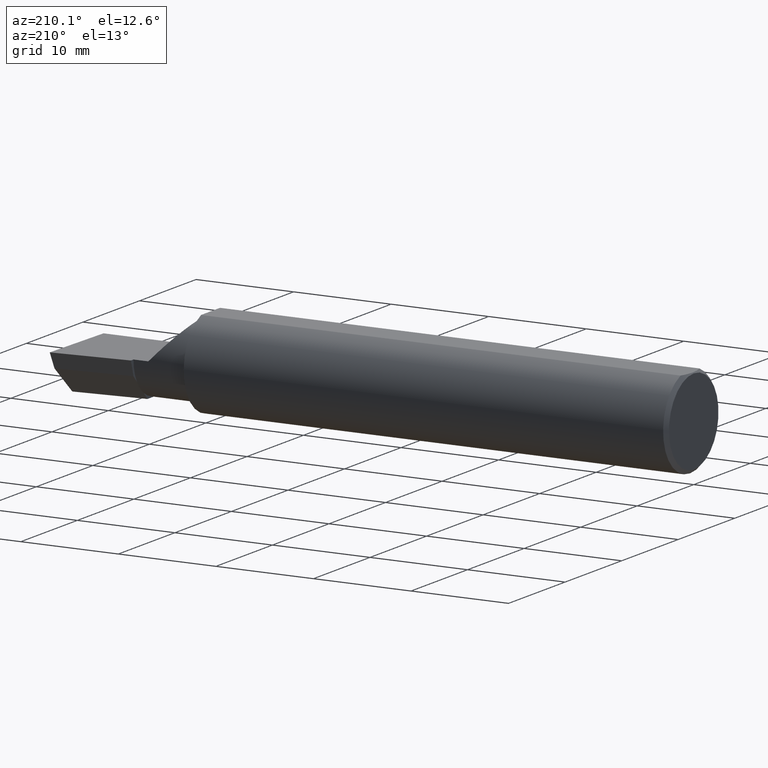
[diagram: clean part render]
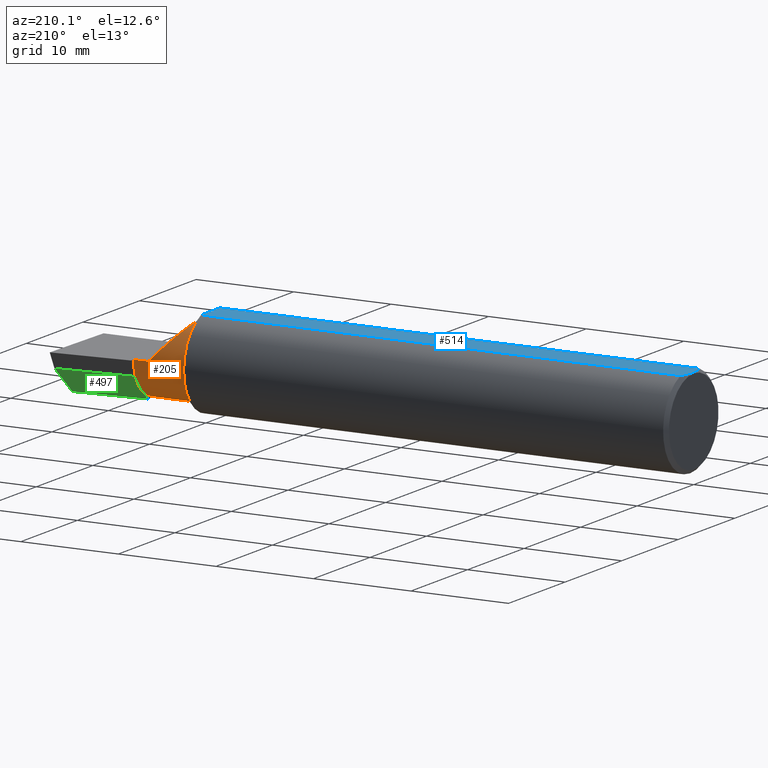
[diagram: same view with three faces highlighted in distinct colors, each labeled with its STEP entity id]
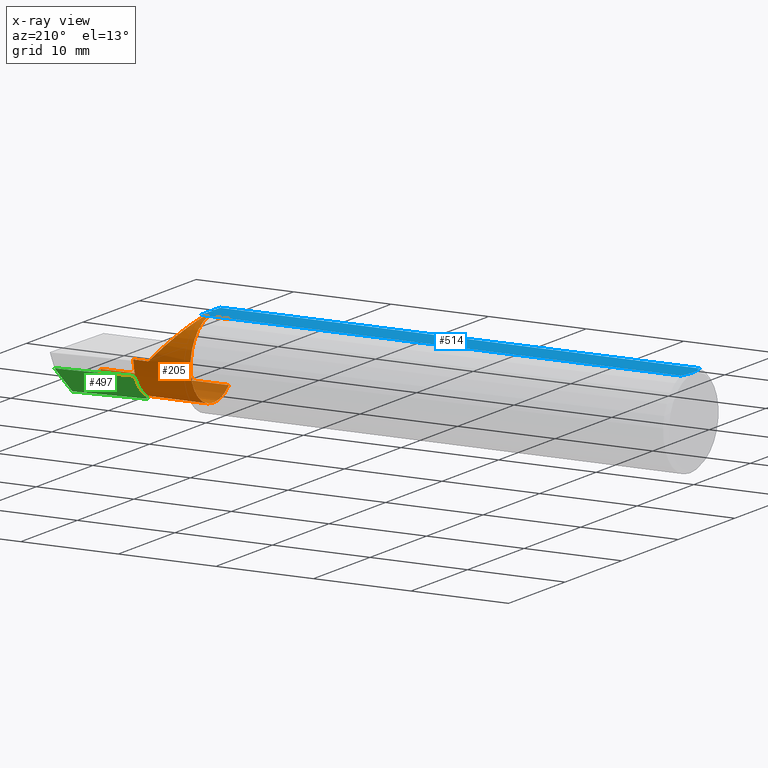
[diagram: x-ray of the same camera — body ghosted, the three highlighted faces saturated]
A machine part, auxiliary view with three faces highlighted in distinct colors.
The next image is the same camera in x-ray (body ghosted, the three faces saturated) — at least one of them is partly hidden behind the body in this view.
Their STEP definitions:

[orange] entity #205 — the highlighted cylindrical surface (partial cylindrical patch) has radius 4.0653 mm, axis along (-1, 0, -0).
#8 = EDGE_CURVE ( 'NONE', #611, #407, #512, .T. ) ;
#35 = VERTEX_POINT ( 'NONE', #614 ) ;
#54 = VERTEX_POINT ( 'NONE', #369 ) ;
#61 = EDGE_CURVE ( 'NONE', #432, #407, #422, .T. ) ;
#69 = EDGE_LOOP ( 'NONE', ( #367, #628, #582, #273, #419, #615, #316, #103, #467, #226 ) ) ;
#70 = AXIS2_PLACEMENT_3D ( 'NONE', #307, #562, #319 ) ;
#72 = CARTESIAN_POINT ( 'NONE',  ( 2.011965325165093965, -0.1454917112299471127, 0.1180346748349047070 ) ) ;
#73 = VERTEX_POINT ( 'NONE', #506 ) ;
#77 = DIRECTION ( 'NONE',  ( 0.000000000000000000, -1.000000000000000000, 0.000000000000000000 ) ) ;
#89 = CARTESIAN_POINT ( 'NONE',  ( 2.189999999999999947, -0.03740000000000000269, 0.000000000000000000 ) ) ;
#101 = AXIS2_PLACEMENT_3D ( 'NONE', #89, #409, #225 ) ;
#103 = ORIENTED_EDGE ( 'NONE', *, *, #424, .F. ) ;
#114 = VERTEX_POINT ( 'NONE', #173 ) ;
#129 = AXIS2_PLACEMENT_3D ( 'NONE', #388, #343, #539 ) ;
#130 = VERTEX_POINT ( 'NONE', #176 ) ;
#131 = CARTESIAN_POINT ( 'NONE',  ( 2.477223734188808368, -0.1454917112299468074, -0.1180346748349050540 ) ) ;
#138 = CARTESIAN_POINT ( 'NONE',  ( 2.474646882977779683, -0.1156304438478840263, -0.1453804992321579559 ) ) ;
#140 = VERTEX_POINT ( 'NONE', #228 ) ;
#146 = CARTESIAN_POINT ( 'NONE',  ( 2.477223734188808368, -0.1454917112299468074, -0.1180346748349050540 ) ) ;
#147 = EDGE_CURVE ( 'NONE', #140, #35, #574, .T. ) ;
#160 = VECTOR ( 'NONE', #257, 39.37007874015748143 ) ;
#169 = CARTESIAN_POINT ( 'NONE',  ( 1.959999999999999964, -0.03740000000000000269, 0.000000000000000000 ) ) ;
#173 = CARTESIAN_POINT ( 'NONE',  ( 2.011965325165093965, -0.1454917112299471127, 0.1180346748349047070 ) ) ;
#176 = CARTESIAN_POINT ( 'NONE',  ( 2.129999999999999893, 0.1226499999999999535, 1.065442715258197396E-16 ) ) ;
#184 =( BOUNDED_CURVE ( )  B_SPLINE_CURVE ( 3, ( #72, #505, #456, #553 ),
 .UNSPECIFIED., .F., .F. ) 
 B_SPLINE_CURVE_WITH_KNOTS ( ( 4, 4 ),
 ( 5.541729662751381014, 7.853981633974483678 ),
 .UNSPECIFIED. ) 
 CURVE ( )  GEOMETRIC_REPRESENTATION_ITEM ( )  RATIONAL_B_SPLINE_CURVE ( ( 1.000000000000000000, 0.6019254882129702056, 0.6019254882129702056, 1.000000000000000000 ) ) 
 REPRESENTATION_ITEM ( '' )  );
#192 = CYLINDRICAL_SURFACE ( 'NONE', #129, 0.1600499999999999146 ) ;
#203 = CARTESIAN_POINT ( 'NONE',  ( 2.075000000000000178, -0.1454917112299468074, -0.1180346748349050540 ) ) ;
#205 = ADVANCED_FACE ( 'NONE', ( #485 ), #192, .T. ) ;
#206 = DIRECTION ( 'NONE',  ( 0.000000000000000000, -1.000000000000000000, -1.776356839400250465E-15 ) ) ;
#213 = DIRECTION ( 'NONE',  ( 1.000000000000000000, -6.829619984160658046E-18, 0.000000000000000000 ) ) ;
#225 = DIRECTION ( 'NONE',  ( 0.000000000000000000, -1.000000000000000000, 0.000000000000000000 ) ) ;
#226 = ORIENTED_EDGE ( 'NONE', *, *, #8, .F. ) ;
#228 = CARTESIAN_POINT ( 'NONE',  ( 1.959999999999999964, -0.1454917112299468629, 0.1180346748349049985 ) ) ;
#236 = EDGE_CURVE ( 'NONE', #130, #73, #580, .T. ) ;
#246 = EDGE_CURVE ( 'NONE', #502, #611, #571, .T. ) ;
#257 = DIRECTION ( 'NONE',  ( -1.000000000000000000, 6.829619984160658046E-18, -0.000000000000000000 ) ) ;
#258 = VECTOR ( 'NONE', #509, 39.37007874015748143 ) ;
#262 = CARTESIAN_POINT ( 'NONE',  ( 2.075000000000000178, -0.1454917112299468074, 0.1180346748349050540 ) ) ;
#267 = LINE ( 'NONE', #262, #524 ) ;
#273 = ORIENTED_EDGE ( 'NONE', *, *, #500, .T. ) ;
#288 = VECTOR ( 'NONE', #577, 39.37007874015748143 ) ;
#297 = AXIS2_PLACEMENT_3D ( 'NONE', #169, #362, #77 ) ;
#307 = CARTESIAN_POINT ( 'NONE',  ( 2.189999999999999947, -0.03740000000000000269, 0.000000000000000000 ) ) ;
#316 = ORIENTED_EDGE ( 'NONE', *, *, #507, .T. ) ;
#319 = DIRECTION ( 'NONE',  ( 0.000000000000000000, -1.000000000000000000, 0.000000000000000000 ) ) ;
#328 = CARTESIAN_POINT ( 'NONE',  ( 2.473833329693936101, -0.07789060880782669449, -0.1600499999999999423 ) ) ;
#336 = EDGE_CURVE ( 'NONE', #502, #35, #357, .T. ) ;
#341 = CIRCLE ( 'NONE', #462, 0.1600499999999999146 ) ;
#343 = DIRECTION ( 'NONE',  ( -1.000000000000000000, 6.829619984160658046E-18, -0.000000000000000000 ) ) ;
#357 = LINE ( 'NONE', #203, #160 ) ;
#362 = DIRECTION ( 'NONE',  ( -1.000000000000000000, 6.829619984160658046E-18, -0.000000000000000000 ) ) ;
#367 = ORIENTED_EDGE ( 'NONE', *, *, #246, .F. ) ;
#369 = CARTESIAN_POINT ( 'NONE',  ( 2.190000000000000391, 0.09838681685089170625, -0.08472274115904399050 ) ) ;
#379 = CARTESIAN_POINT ( 'NONE',  ( 1.093080678464946361E-18, 0.1226499999999998841, 3.267291166268304703E-16 ) ) ;
#388 = CARTESIAN_POINT ( 'NONE',  ( 0.000000000000000000, -0.03739999999999998881, 0.000000000000000000 ) ) ;
#407 = VERTEX_POINT ( 'NONE', #542 ) ;
#409 = DIRECTION ( 'NONE',  ( -1.000000000000000000, 6.829619984160658046E-18, -0.000000000000000000 ) ) ;
#419 = ORIENTED_EDGE ( 'NONE', *, *, #538, .T. ) ;
#422 = CIRCLE ( 'NONE', #101, 0.1600499999999999146 ) ;
#424 = EDGE_CURVE ( 'NONE', #432, #54, #341, .T. ) ;
#432 = VERTEX_POINT ( 'NONE', #447 ) ;
#445 = DIRECTION ( 'NONE',  ( 1.000000000000000000, -6.829619984160658046E-18, 0.000000000000000000 ) ) ;
#447 = CARTESIAN_POINT ( 'NONE',  ( 2.190000000000000391, 0.05139684578702544832, -0.1331582617725058648 ) ) ;
#456 = CARTESIAN_POINT ( 'NONE',  ( 1.967758842172327105, 0.1226500000000000229, 0.1622411578276707345 ) ) ;
#460 = CARTESIAN_POINT ( 'NONE',  ( 2.500000000000000000, -0.03740000000000000269, -0.1600499999999999701 ) ) ;
#462 = AXIS2_PLACEMENT_3D ( 'NONE', #588, #445, #206 ) ;
#467 = ORIENTED_EDGE ( 'NONE', *, *, #61, .T. ) ;
#485 = FACE_OUTER_BOUND ( 'NONE', #69, .T. ) ;
#500 = EDGE_CURVE ( 'NONE', #140, #114, #267, .T. ) ;
#502 = VERTEX_POINT ( 'NONE', #131 ) ;
#505 = CARTESIAN_POINT ( 'NONE',  ( 1.902393788885674120, -0.02584108761840332724, 0.2276062111143229705 ) ) ;
#506 = CARTESIAN_POINT ( 'NONE',  ( 2.189999999999999947, 0.1226499999999998980, 3.267291166268305196E-16 ) ) ;
#507 = EDGE_CURVE ( 'NONE', #73, #54, #593, .T. ) ;
#509 = DIRECTION ( 'NONE',  ( -1.000000000000000000, 5.691349986800549142E-18, -0.000000000000000000 ) ) ;
#512 = LINE ( 'NONE', #460, #258 ) ;
#524 = VECTOR ( 'NONE', #213, 39.37007874015748143 ) ;
#527 = CARTESIAN_POINT ( 'NONE',  ( 2.474893613600468445, -0.03740000000000000269, -0.1600499999999999701 ) ) ;
#532 = CARTESIAN_POINT ( 'NONE',  ( 2.474893613600468445, -0.03740000000000000269, -0.1600499999999999701 ) ) ;
#538 = EDGE_CURVE ( 'NONE', #114, #130, #184, .T. ) ;
#539 = DIRECTION ( 'NONE',  ( -6.829619984160657276E-18, -1.000000000000000000, 0.000000000000000000 ) ) ;
#542 = CARTESIAN_POINT ( 'NONE',  ( 2.190000000000000391, -0.03740000000000000269, -0.1600499999999999701 ) ) ;
#553 = CARTESIAN_POINT ( 'NONE',  ( 2.129999999999999893, 0.1226499999999999535, 1.065442715258197396E-16 ) ) ;
#562 = DIRECTION ( 'NONE',  ( -1.000000000000000000, 6.829619984160658046E-18, -0.000000000000000000 ) ) ;
#571 =( BOUNDED_CURVE ( )  B_SPLINE_CURVE ( 3, ( #146, #138, #328, #532 ),
 .UNSPECIFIED., .F., .F. ) 
 B_SPLINE_CURVE_WITH_KNOTS ( ( 4, 4 ),
 ( 5.751779107031781635, 6.493234751459984189 ),
 .UNSPECIFIED. ) 
 CURVE ( )  GEOMETRIC_REPRESENTATION_ITEM ( )  RATIONAL_B_SPLINE_CURVE ( ( 1.000000000000000000, 0.9547092712975350226, 0.9547092712975350226, 1.000000000000000000 ) ) 
 REPRESENTATION_ITEM ( '' )  );
#574 = CIRCLE ( 'NONE', #297, 0.1600499999999999146 ) ;
#577 = DIRECTION ( 'NONE',  ( 1.000000000000000000, -6.829619984160658046E-18, 0.000000000000000000 ) ) ;
#580 = LINE ( 'NONE', #379, #288 ) ;
#582 = ORIENTED_EDGE ( 'NONE', *, *, #147, .F. ) ;
#588 = CARTESIAN_POINT ( 'NONE',  ( 2.190000000000000391, -0.03740000000000000269, 0.000000000000000000 ) ) ;
#593 = CIRCLE ( 'NONE', #70, 0.1600499999999999146 ) ;
#611 = VERTEX_POINT ( 'NONE', #527 ) ;
#614 = CARTESIAN_POINT ( 'NONE',  ( 1.959999999999999964, -0.1454917112299468074, -0.1180346748349050262 ) ) ;
#615 = ORIENTED_EDGE ( 'NONE', *, *, #236, .T. ) ;
#628 = ORIENTED_EDGE ( 'NONE', *, *, #336, .T. ) ;

[blue] entity #514 — the highlighted planar face has unit normal (0, -0, -1).
#13 = B_SPLINE_CURVE_WITH_KNOTS ( 'NONE', 3,
 ( #14, #109, #63, #590, #550, #113 ),
 .UNSPECIFIED., .F., .F.,
 ( 4, 2, 4 ),
 ( 0.003480013901590607410, 0.004330767971208083697, 0.005181522040825559984 ),
 .UNSPECIFIED. ) ;
#14 = CARTESIAN_POINT ( 'NONE',  ( 0.003000000000000218638, 2.334609556160449697E-17, 0.1753499999999999781 ) ) ;
#20 = CARTESIAN_POINT ( 'NONE',  ( 0.000000000000000000, -0.06597272163553657975, 0.1753499999999999781 ) ) ;
#51 = CARTESIAN_POINT ( 'NONE',  ( 0.003000000000000218638, 2.334609556160449697E-17, 0.1753499999999999781 ) ) ;
#63 = CARTESIAN_POINT ( 'NONE',  ( 0.004115035183746292881, 0.02255629470626744487, 0.1753499999999999781 ) ) ;
#68 = EDGE_CURVE ( 'NONE', #567, #322, #418, .T. ) ;
#76 = DIRECTION ( 'NONE',  ( 0.000000000000000000, 1.000000000000000000, -1.438723400918613551E-16 ) ) ;
#90 = ORIENTED_EDGE ( 'NONE', *, *, #469, .F. ) ;
#109 = CARTESIAN_POINT ( 'NONE',  ( 0.003000000000000169632, 0.01127363201155560934, 0.1753499999999999781 ) ) ;
#113 = CARTESIAN_POINT ( 'NONE',  ( 0.01499999999999999424, 0.06597272163553663527, 0.1753499999999999781 ) ) ;
#126 = VERTEX_POINT ( 'NONE', #470 ) ;
#142 = B_SPLINE_CURVE_WITH_KNOTS ( 'NONE', 3,
 ( #386, #285, #241, #338, #197, #51 ),
 .UNSPECIFIED., .F., .F.,
 ( 4, 2, 4 ),
 ( 0.001779942938356815062, 0.002629978419973711019, 0.003480013901590607410 ),
 .UNSPECIFIED. ) ;
#148 = VERTEX_POINT ( 'NONE', #263 ) ;
#152 = VECTOR ( 'NONE', #265, 39.37007874015748143 ) ;
#181 = FACE_OUTER_BOUND ( 'NONE', #486, .T. ) ;
#191 = VECTOR ( 'NONE', #260, 39.37007874015748143 ) ;
#197 = CARTESIAN_POINT ( 'NONE',  ( 0.003000000000000172667, -0.01126410975715121283, 0.1753500000000000059 ) ) ;
#220 = DIRECTION ( 'NONE',  ( 1.000000000000000000, 0.000000000000000000, 0.000000000000000000 ) ) ;
#241 = CARTESIAN_POINT ( 'NONE',  ( 0.008227791779583789808, -0.04447712204611815878, 0.1753499999999999781 ) ) ;
#247 = VERTEX_POINT ( 'NONE', #434 ) ;
#260 = DIRECTION ( 'NONE',  ( -1.000000000000000000, -0.000000000000000000, -0.000000000000000000 ) ) ;
#263 = CARTESIAN_POINT ( 'NONE',  ( 0.01499999999999999424, 0.06597272163553663527, 0.1753499999999999781 ) ) ;
#265 = DIRECTION ( 'NONE',  ( -6.829619984160658046E-18, -1.000000000000000000, 1.438723400918613551E-16 ) ) ;
#285 = CARTESIAN_POINT ( 'NONE',  ( 0.01128414053810044941, -0.05542038647445821781, 0.1753499999999999781 ) ) ;
#318 = ORIENTED_EDGE ( 'NONE', *, *, #457, .F. ) ;
#322 = VERTEX_POINT ( 'NONE', #496 ) ;
#331 = ORIENTED_EDGE ( 'NONE', *, *, #344, .F. ) ;
#338 = CARTESIAN_POINT ( 'NONE',  ( 0.004093196532652216939, -0.02240707710020816909, 0.1753499999999999504 ) ) ;
#344 = EDGE_CURVE ( 'NONE', #126, #148, #13, .T. ) ;
#374 = PLANE ( 'NONE',  #482 ) ;
#386 = CARTESIAN_POINT ( 'NONE',  ( 0.01499999999999997863, -0.06597272163553657975, 0.1753499999999999781 ) ) ;
#404 = ORIENTED_EDGE ( 'NONE', *, *, #68, .F. ) ;
#408 = CARTESIAN_POINT ( 'NONE',  ( 2.500000000000000000, 0.2373500000000000332, 0.1753499999999999504 ) ) ;
#410 = CARTESIAN_POINT ( 'NONE',  ( 0.000000000000000000, 0.06597272163553663527, 0.1753499999999999781 ) ) ;
#416 = CARTESIAN_POINT ( 'NONE',  ( 1.949999999999999956, 0.2373500000000000332, 0.1753499999999999504 ) ) ;
#418 = LINE ( 'NONE', #416, #152 ) ;
#434 = CARTESIAN_POINT ( 'NONE',  ( 0.01499999999999997863, -0.06597272163553657975, 0.1753499999999999781 ) ) ;
#457 = EDGE_CURVE ( 'NONE', #148, #567, #501, .T. ) ;
#459 = CARTESIAN_POINT ( 'NONE',  ( 1.949999999999999956, 0.06597272163553663527, 0.1753499999999999781 ) ) ;
#469 = EDGE_CURVE ( 'NONE', #322, #247, #606, .T. ) ;
#470 = CARTESIAN_POINT ( 'NONE',  ( 0.003000000000000218638, 2.334609556160449697E-17, 0.1753499999999999781 ) ) ;
#474 = VECTOR ( 'NONE', #220, 39.37007874015748143 ) ;
#482 = AXIS2_PLACEMENT_3D ( 'NONE', #408, #558, #76 ) ;
#486 = EDGE_LOOP ( 'NONE', ( #404, #318, #331, #595, #90 ) ) ;
#496 = CARTESIAN_POINT ( 'NONE',  ( 1.949999999999999956, -0.06597272163553659363, 0.1753499999999999781 ) ) ;
#501 = LINE ( 'NONE', #410, #474 ) ;
#514 = ADVANCED_FACE ( 'NONE', ( #181 ), #374, .F. ) ;
#550 = CARTESIAN_POINT ( 'NONE',  ( 0.01125230581755086272, 0.05532998191409922023, 0.1753500000000000059 ) ) ;
#558 = DIRECTION ( 'NONE',  ( 0.000000000000000000, -1.438723400918613551E-16, -1.000000000000000000 ) ) ;
#567 = VERTEX_POINT ( 'NONE', #459 ) ;
#590 = CARTESIAN_POINT ( 'NONE',  ( 0.008244775919947424855, 0.04453482769755855164, 0.1753499999999999504 ) ) ;
#595 = ORIENTED_EDGE ( 'NONE', *, *, #621, .F. ) ;
#606 = LINE ( 'NONE', #20, #191 ) ;
#621 = EDGE_CURVE ( 'NONE', #247, #126, #142, .T. ) ;

[green] entity #497 — the highlighted planar face has unit normal (-0.0689, 0.716, -0.6947).
#19 = VERTEX_POINT ( 'NONE', #82 ) ;
#22 = CARTESIAN_POINT ( 'NONE',  ( 2.491169618080469217, 0.05430702260361122691, -0.1600499999999999701 ) ) ;
#25 = VECTOR ( 'NONE', #75, 39.37007874015748854 ) ;
#28 = LINE ( 'NONE', #22, #25 ) ;
#54 = VERTEX_POINT ( 'NONE', #369 ) ;
#58 = VECTOR ( 'NONE', #366, 39.37007874015748854 ) ;
#75 = DIRECTION ( 'NONE',  ( -0.9953961983671800740, -0.09584575252021031166, 0.000000000000000000 ) ) ;
#82 = CARTESIAN_POINT ( 'NONE',  ( 2.492127980275578469, 0.1514633278254541304, -0.05999999999999999084 ) ) ;
#85 = CARTESIAN_POINT ( 'NONE',  ( 2.190000000000000391, 0.1039332780936034484, -0.07900565447499380278 ) ) ;
#106 = EDGE_CURVE ( 'NONE', #432, #455, #603, .T. ) ;
#120 = EDGE_CURVE ( 'NONE', #376, #455, #28, .T. ) ;
#156 = EDGE_CURVE ( 'NONE', #376, #19, #555, .T. ) ;
#168 = CARTESIAN_POINT ( 'NONE',  ( 2.190000000000000391, 0.1039332780936034484, -0.07900565447499380278 ) ) ;
#170 = AXIS2_PLACEMENT_3D ( 'NONE', #365, #420, #368 ) ;
#175 = PLANE ( 'NONE',  #170 ) ;
#183 = ORIENTED_EDGE ( 'NONE', *, *, #156, .F. ) ;
#190 = ORIENTED_EDGE ( 'NONE', *, *, #210, .F. ) ;
#198 = DIRECTION ( 'NONE',  ( -4.755568962650852797E-18, -0.6963153109074925462, -0.7177360153954948085 ) ) ;
#210 = EDGE_CURVE ( 'NONE', #334, #54, #280, .T. ) ;
#216 = DIRECTION ( 'NONE',  ( -4.755568962650852797E-18, -0.6963153109074925462, -0.7177360153954948085 ) ) ;
#230 = LINE ( 'NONE', #616, #240 ) ;
#240 = VECTOR ( 'NONE', #332, 39.37007874015748854 ) ;
#256 = ORIENTED_EDGE ( 'NONE', *, *, #120, .T. ) ;
#269 = ORIENTED_EDGE ( 'NONE', *, *, #610, .F. ) ;
#280 = LINE ( 'NONE', #382, #612 ) ;
#305 = CARTESIAN_POINT ( 'NONE',  ( 2.190000000000000391, 0.02530768673263080262, -0.1600499999999999701 ) ) ;
#314 = DIRECTION ( 'NONE',  ( 0.1053106618242473369, 0.6976485211320153645, 0.7086580314005131997 ) ) ;
#332 = DIRECTION ( 'NONE',  ( -0.9953961983671800740, -0.09584575252021031166, 0.000000000000000000 ) ) ;
#334 = VERTEX_POINT ( 'NONE', #491 ) ;
#365 = CARTESIAN_POINT ( 'NONE',  ( 2.511712141217646632, 0.1533490680423130470, -0.05999999999999999084 ) ) ;
#366 = DIRECTION ( 'NONE',  ( -4.755568962650852797E-18, -0.6963153109074925462, -0.7177360153954948085 ) ) ;
#368 = DIRECTION ( 'NONE',  ( 0.000000000000000000, 0.6963153109074924352, 0.7177360153954949196 ) ) ;
#369 = CARTESIAN_POINT ( 'NONE',  ( 2.190000000000000391, 0.09838681685089170625, -0.08472274115904399050 ) ) ;
#376 = VERTEX_POINT ( 'NONE', #399 ) ;
#382 = CARTESIAN_POINT ( 'NONE',  ( 2.190000000000000391, 0.1039332780936034484, -0.07900565447499380278 ) ) ;
#395 = VECTOR ( 'NONE', #314, 39.37007874015748854 ) ;
#399 = CARTESIAN_POINT ( 'NONE',  ( 2.477259974483429161, 0.05296767626088543651, -0.1600499999999999701 ) ) ;
#420 = DIRECTION ( 'NONE',  ( -0.06894566448119622548, 0.7160281025913035613, -0.6946583704589933683 ) ) ;
#432 = VERTEX_POINT ( 'NONE', #447 ) ;
#443 = VECTOR ( 'NONE', #216, 39.37007874015748854 ) ;
#447 = CARTESIAN_POINT ( 'NONE',  ( 2.190000000000000391, 0.05139684578702544832, -0.1331582617725058648 ) ) ;
#455 = VERTEX_POINT ( 'NONE', #305 ) ;
#468 = FACE_OUTER_BOUND ( 'NONE', #480, .T. ) ;
#480 = EDGE_LOOP ( 'NONE', ( #183, #256, #513, #520, #190, #269 ) ) ;
#491 = CARTESIAN_POINT ( 'NONE',  ( 2.190000000000000391, 0.1223717121708782218, -0.05999999999999999778 ) ) ;
#497 = ADVANCED_FACE ( 'NONE', ( #468 ), #175, .T. ) ;
#513 = ORIENTED_EDGE ( 'NONE', *, *, #106, .F. ) ;
#520 = ORIENTED_EDGE ( 'NONE', *, *, #554, .F. ) ;
#554 = EDGE_CURVE ( 'NONE', #54, #432, #598, .T. ) ;
#555 = LINE ( 'NONE', #559, #395 ) ;
#559 = CARTESIAN_POINT ( 'NONE',  ( 2.492483720199198505, 0.1538199878950242405, -0.05760614975163727558 ) ) ;
#598 = LINE ( 'NONE', #168, #443 ) ;
#603 = LINE ( 'NONE', #85, #58 ) ;
#610 = EDGE_CURVE ( 'NONE', #19, #334, #230, .T. ) ;
#612 = VECTOR ( 'NONE', #198, 39.37007874015748854 ) ;
#616 = CARTESIAN_POINT ( 'NONE',  ( 2.511712141217646632, 0.1533490680423130470, -0.05999999999999999084 ) ) ;